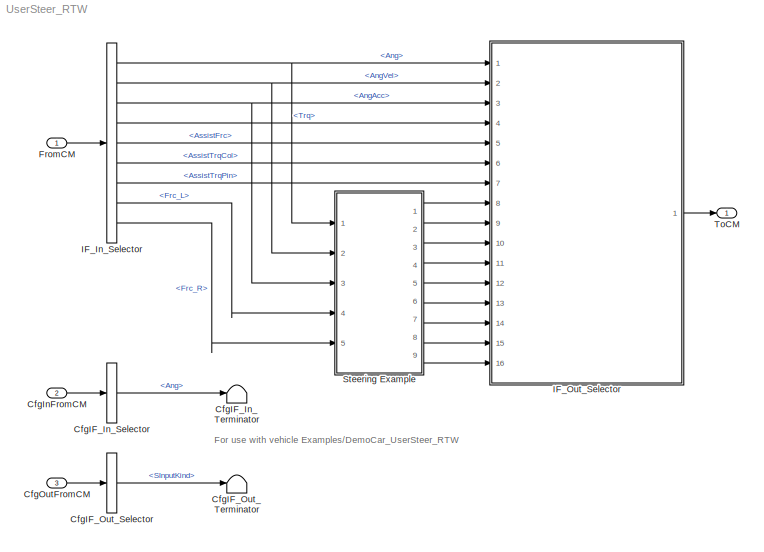
MODEL UserSteer_RTW
KIND model
CONFIG InitFcn = vehicle = 'Car'; if ~length(which('cmcmd')), cmenv; end\nUserSteer_RTW_bus
CONFIG PreLoadFcn = vehicle = 'Car'; if ~length(which('cmcmd')), cmenv; end\nUserSteer_RTW_bus
BLOCK [BusSelector] CfgIF_In_Selector
  OutputSignals = Ang
  Ports = [1, 1]
  SID = 9
BLOCK [Terminator] CfgIF_In_Terminator
  SID = 10
BLOCK [BusSelector] CfgIF_Out_Selector
  OutputSignals = SInputKind
  Ports = [1, 1]
  SID = 12
BLOCK [Terminator] CfgIF_Out_Terminator
  SID = 13
BLOCK [Inport] CfgInFromCM
  OutDataTypeStr = Bus: cmSteeringCfgIn
  Port = 2
  SID = 8
BLOCK [Inport] CfgOutFromCM
  OutDataTypeStr = Bus: cmSteeringCfgOut
  Port = 3
  SID = 11
BLOCK [Inport] FromCM
  OutDataTypeStr = Bus: cmSteeringIn
  SID = 1
BLOCK [BusSelector] IF_In_Selector
  OutputSignals = Ang,AngVel,AngAcc,Trq,AssistFrc,AssistTrqCol,AssistTrqPin,Frc_L,Frc_R
  Ports = [1, 9]
  SID = 47
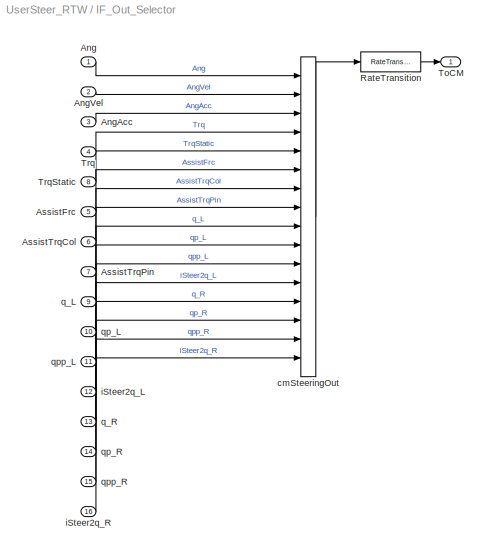
BLOCK [SubSystem] IF_Out_Selector
  OpenFcn = cmSignalSelect('SignalSelection_CB',gcb)
  Ports = [16, 1]
  RequestExecContextInheritance = off
  SID = 5
  UserData = DataTag0
  UserDataPersistent = on
BLOCK [Inport] IF_Out_Selector/Ang
  SID = 31
BLOCK [Inport] IF_Out_Selector/AngAcc
  Port = 3
  SID = 33
BLOCK [Inport] IF_Out_Selector/AngVel
  Port = 2
  SID = 32
BLOCK [Inport] IF_Out_Selector/AssistFrc
  Port = 5
  SID = 35
BLOCK [Inport] IF_Out_Selector/AssistTrqCol
  Port = 6
  SID = 36
BLOCK [Inport] IF_Out_Selector/AssistTrqPin
  Port = 7
  SID = 37
BLOCK [RateTransition] IF_Out_Selector/RateTransition
  OutPortSampleTime = str2num(get_param(bdroot,'FixedStep'))
  SID = 6
BLOCK [Outport] IF_Out_Selector/ToCM
  SID = 7
  VectorParamsAs1DForOutWhenUnconnected = off
BLOCK [Inport] IF_Out_Selector/Trq
  Port = 4
  SID = 34
BLOCK [Inport] IF_Out_Selector/TrqStatic
  Port = 8
  SID = 38
BLOCK [BusCreator] IF_Out_Selector/cmSteeringOut
  InheritFromInputs = on
  Inputs = 16
  Ports = [16, 1]
  SID = 14
BLOCK [Inport] IF_Out_Selector/iSteer2q_L
  Port = 12
  SID = 42
BLOCK [Inport] IF_Out_Selector/iSteer2q_R
  Port = 16
  SID = 46
BLOCK [Inport] IF_Out_Selector/q_L
  Port = 9
  SID = 39
BLOCK [Inport] IF_Out_Selector/q_R
  Port = 13
  SID = 43
BLOCK [Inport] IF_Out_Selector/qp_L
  Port = 10
  SID = 40
BLOCK [Inport] IF_Out_Selector/qp_R
  Port = 14
  SID = 44
BLOCK [Inport] IF_Out_Selector/qpp_L
  Port = 11
  SID = 41
BLOCK [Inport] IF_Out_Selector/qpp_R
  Port = 15
  SID = 45
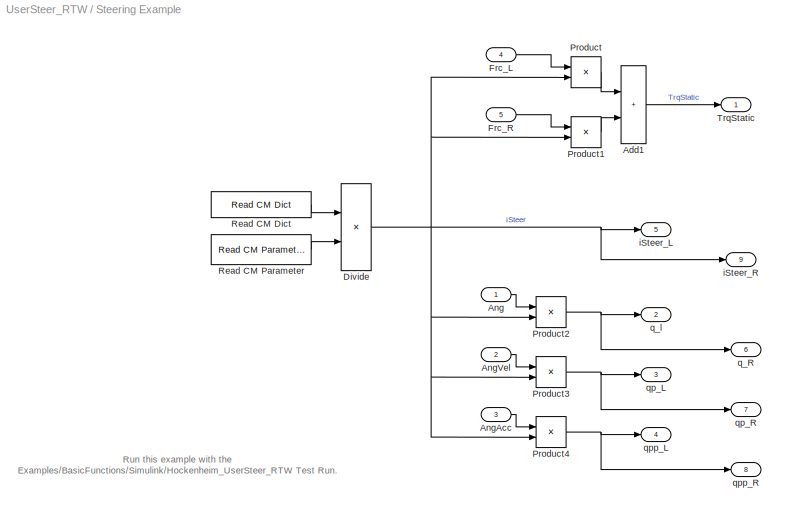
BLOCK [SubSystem] Steering Example
  Ports = [5, 9]
  RequestExecContextInheritance = off
  SID = 48
BLOCK [Sum] Steering Example/Add1
  IconShape = rectangular
  Ports = [2, 1]
  SID = 54
BLOCK [Inport] Steering Example/Ang
  SID = 49
BLOCK [Inport] Steering Example/AngAcc
  Port = 3
  SID = 51
BLOCK [Inport] Steering Example/AngVel
  Port = 2
  SID = 50
BLOCK [Product] Steering Example/Divide
  Inputs = */
  Ports = [2, 1]
  SID = 55
BLOCK [Inport] Steering Example/Frc_L
  Port = 4
  SID = 52
BLOCK [Inport] Steering Example/Frc_R
  Port = 5
  SID = 53
BLOCK [Product] Steering Example/Product
  Ports = [2, 1]
  RndMeth = Zero
  SID = 56
BLOCK [Product] Steering Example/Product1
  Ports = [2, 1]
  RndMeth = Zero
  SID = 57
BLOCK [Product] Steering Example/Product2
  Ports = [2, 1]
  RndMeth = Zero
  SID = 58
BLOCK [Product] Steering Example/Product3
  Ports = [2, 1]
  RndMeth = Zero
  SID = 59
BLOCK [Product] Steering Example/Product4
  Ports = [2, 1]
  RndMeth = Zero
  SID = 60
BLOCK [Reference] Steering Example/Read CM Dict  REF=CarMaker4SL/Read CM Dict
  Ports = [0, 1]
  SID = 61
  SourceBlock = CarMaker4SL/Read CM Dict
  SourceProductName = CarMaker4SL
  SourceType = Read CarMaker Dictionary Variable(s)
  xname = Steer.Cfg.PosSign
  xsync = off
BLOCK [Reference] Steering Example/Read CM Parameter  REF=CarMaker4SL/Read CM Parameter
  Ports = [0, 1]
  SID = 62
  SourceBlock = CarMaker4SL/Read CM Parameter
  SourceProductName = CarMaker4SL
  SourceType = Read CarMaker Info File Parameter
  xdefaults = []
  xfile = Steering
  xkey = Steering.Rack2StWhl
  xmuxed = on
  xnout = 1
BLOCK [Outport] Steering Example/TrqStatic
  SID = 63
  VectorParamsAs1DForOutWhenUnconnected = off
BLOCK [Outport] Steering Example/iSteer_L
  Port = 5
  SID = 67
  VectorParamsAs1DForOutWhenUnconnected = off
BLOCK [Outport] Steering Example/iSteer_R
  Port = 9
  SID = 71
  VectorParamsAs1DForOutWhenUnconnected = off
BLOCK [Outport] Steering Example/q_R
  Port = 6
  SID = 68
  VectorParamsAs1DForOutWhenUnconnected = off
BLOCK [Outport] Steering Example/q_l
  Port = 2
  SID = 64
  VectorParamsAs1DForOutWhenUnconnected = off
BLOCK [Outport] Steering Example/qp_L
  Port = 3
  SID = 65
  VectorParamsAs1DForOutWhenUnconnected = off
BLOCK [Outport] Steering Example/qp_R
  Port = 7
  SID = 69
  VectorParamsAs1DForOutWhenUnconnected = off
BLOCK [Outport] Steering Example/qpp_L
  Port = 4
  SID = 66
  VectorParamsAs1DForOutWhenUnconnected = off
BLOCK [Outport] Steering Example/qpp_R
  Port = 8
  SID = 70
  VectorParamsAs1DForOutWhenUnconnected = off
BLOCK [Outport] ToCM
  OutDataTypeStr = Bus: cmSteeringOut
  SID = 4
  VectorParamsAs1DForOutWhenUnconnected = off
ANNOTATION (root): For use with vehicle Examples/DemoCar_UserSteer_RTW
ANNOTATION Steering Example: Run this example with the\nExamples/BasicFunctions/Simulink/Hockenheim_UserSteer_RTW Test Run.
LINE CfgIF_In_Selector:1 -> CfgIF_In_Terminator:1
LINE CfgIF_Out_Selector:1 -> CfgIF_Out_Terminator:1
LINE CfgInFromCM:1 -> CfgIF_In_Selector:1
LINE CfgOutFromCM:1 -> CfgIF_Out_Selector:1
LINE FromCM:1 -> IF_In_Selector:1
NET IF_In_Selector:1 -> IF_Out_Selector:1, Steering Example:1
NET IF_In_Selector:2 -> IF_Out_Selector:2, Steering Example:2
NET IF_In_Selector:3 -> IF_Out_Selector:3, Steering Example:3
LINE IF_In_Selector:4 -> IF_Out_Selector:4
LINE IF_In_Selector:5 -> IF_Out_Selector:5
LINE IF_In_Selector:6 -> IF_Out_Selector:6
LINE IF_In_Selector:7 -> IF_Out_Selector:7
LINE IF_In_Selector:8 -> Steering Example:4
LINE IF_In_Selector:9 -> Steering Example:5
LINE IF_Out_Selector/Ang:1 -> IF_Out_Selector/cmSteeringOut:1
LINE IF_Out_Selector/AngAcc:1 -> IF_Out_Selector/cmSteeringOut:3
LINE IF_Out_Selector/AngVel:1 -> IF_Out_Selector/cmSteeringOut:2
LINE IF_Out_Selector/AssistFrc:1 -> IF_Out_Selector/cmSteeringOut:6
LINE IF_Out_Selector/AssistTrqCol:1 -> IF_Out_Selector/cmSteeringOut:7
LINE IF_Out_Selector/AssistTrqPin:1 -> IF_Out_Selector/cmSteeringOut:8
LINE IF_Out_Selector/RateTransition:1 -> IF_Out_Selector/ToCM:1
LINE IF_Out_Selector/Trq:1 -> IF_Out_Selector/cmSteeringOut:4
LINE IF_Out_Selector/TrqStatic:1 -> IF_Out_Selector/cmSteeringOut:5
LINE IF_Out_Selector/cmSteeringOut:1 -> IF_Out_Selector/RateTransition:1
LINE IF_Out_Selector/iSteer2q_L:1 -> IF_Out_Selector/cmSteeringOut:12
LINE IF_Out_Selector/iSteer2q_R:1 -> IF_Out_Selector/cmSteeringOut:16
LINE IF_Out_Selector/q_L:1 -> IF_Out_Selector/cmSteeringOut:9
LINE IF_Out_Selector/q_R:1 -> IF_Out_Selector/cmSteeringOut:13
LINE IF_Out_Selector/qp_L:1 -> IF_Out_Selector/cmSteeringOut:10
LINE IF_Out_Selector/qp_R:1 -> IF_Out_Selector/cmSteeringOut:14
LINE IF_Out_Selector/qpp_L:1 -> IF_Out_Selector/cmSteeringOut:11
LINE IF_Out_Selector/qpp_R:1 -> IF_Out_Selector/cmSteeringOut:15
LINE IF_Out_Selector:1 -> ToCM:1
LINE Steering Example/Add1:1 -> Steering Example/TrqStatic:1
LINE Steering Example/Ang:1 -> Steering Example/Product2:1
LINE Steering Example/AngAcc:1 -> Steering Example/Product4:1
LINE Steering Example/AngVel:1 -> Steering Example/Product3:1
NET Steering Example/Divide:1 -> Steering Example/Product1:2, Steering Example/Product2:2, Steering Example/Product3:2, Steering Example/Product4:2, Steering Example/Product:2, Steering Example/iSteer_L:1, Steering Example/iSteer_R:1
LINE Steering Example/Frc_L:1 -> Steering Example/Product:1
LINE Steering Example/Frc_R:1 -> Steering Example/Product1:1
LINE Steering Example/Product1:1 -> Steering Example/Add1:2
NET Steering Example/Product2:1 -> Steering Example/q_R:1, Steering Example/q_l:1
NET Steering Example/Product3:1 -> Steering Example/qp_L:1, Steering Example/qp_R:1
NET Steering Example/Product4:1 -> Steering Example/qpp_L:1, Steering Example/qpp_R:1
LINE Steering Example/Product:1 -> Steering Example/Add1:1
LINE Steering Example/Read CM Dict:1 -> Steering Example/Divide:1
LINE Steering Example/Read CM Parameter:1 -> Steering Example/Divide:2
LINE Steering Example:1 -> IF_Out_Selector:8
LINE Steering Example:2 -> IF_Out_Selector:9
LINE Steering Example:3 -> IF_Out_Selector:10
LINE Steering Example:4 -> IF_Out_Selector:11
LINE Steering Example:5 -> IF_Out_Selector:12
LINE Steering Example:6 -> IF_Out_Selector:13
LINE Steering Example:7 -> IF_Out_Selector:14
LINE Steering Example:8 -> IF_Out_Selector:15
LINE Steering Example:9 -> IF_Out_Selector:16
note: NET lines group one-source signal fan-out (src -> all destinations, sorted); 1:1 wires keep LINE
